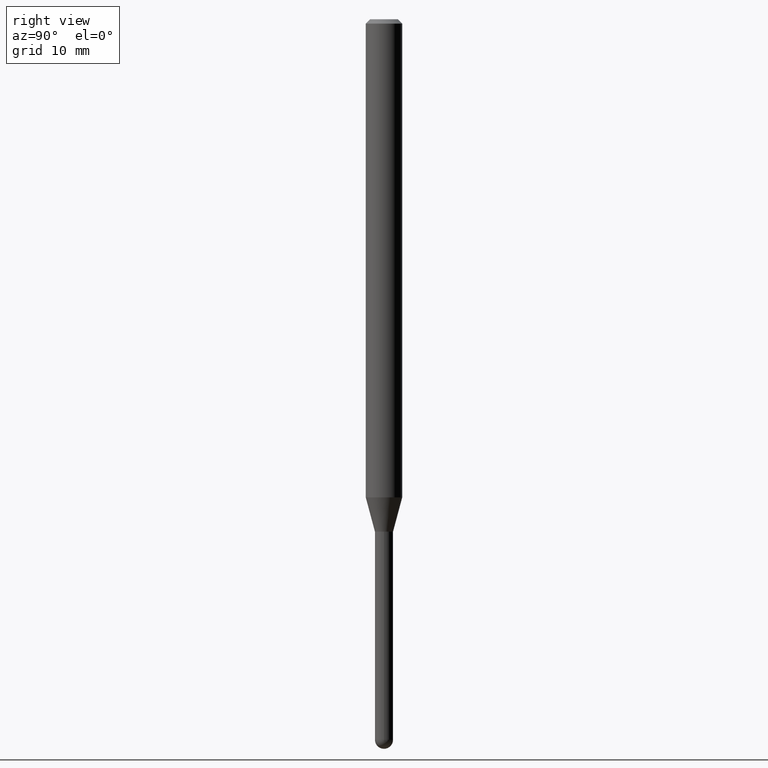
[diagram: clean part render]
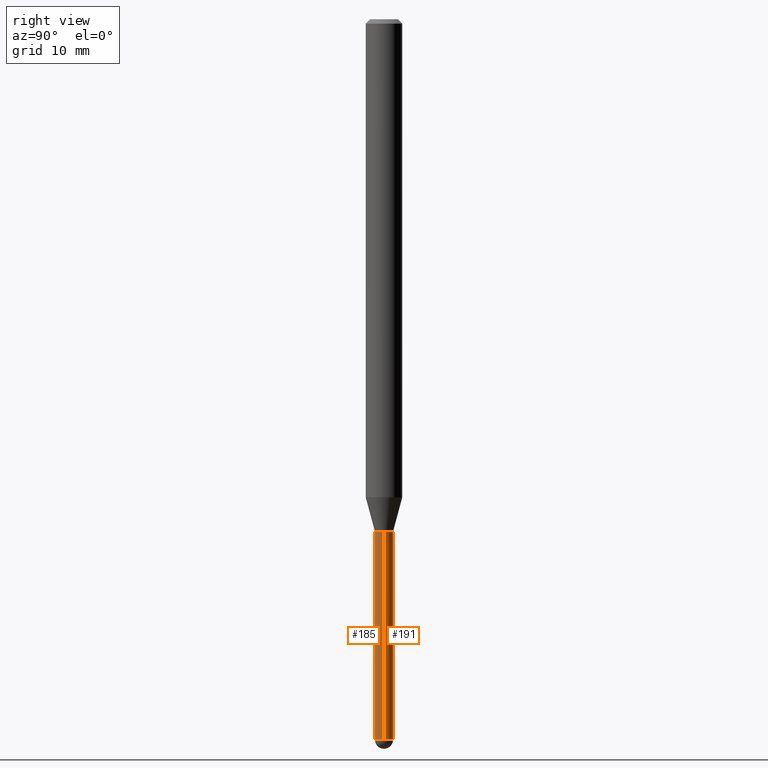
[diagram: same view with one multi-face feature highlighted, each face labeled with its STEP entity id]
A machine part, right view. The highlighted faces form ONE feature: a constant-radius fillet chain: 2 tangent blend faces with common blend radius 0.7874 mm. The faces share edges in the B-rep.
Their STEP definitions:
[1] entity #191 (Cylinder):
#7 = FACE_OUTER_BOUND ( 'NONE', #284, .T. ) ;
#27 = CIRCLE ( 'NONE', #311, 0.03099999999999999978 ) ;
#43 = DIRECTION ( 'NONE',  ( -2.445468806185136597E-29, 3.491481338843145583E-15, 1.000000000000000000 ) ) ;
#68 = LINE ( 'NONE', #224, #162 ) ;
#79 = DIRECTION ( 'NONE',  ( -2.445468806185136597E-29, 3.491481338843145583E-15, 1.000000000000000000 ) ) ;
#88 = CARTESIAN_POINT ( 'NONE',  ( 0.000000000000000000, 0.000000000000000000, 0.000000000000000000 ) ) ;
#90 = DIRECTION ( 'NONE',  ( 1.000000000000000000, -6.982962677686270655E-15, 0.000000000000000000 ) ) ;
#91 = EDGE_CURVE ( 'NONE', #496, #244, #68, .T. ) ;
#120 = CARTESIAN_POINT ( 'NONE',  ( 0.03099999999999999978, -6.347513074016838623E-15, -1.756000000000000005 ) ) ;
#128 = CARTESIAN_POINT ( 'NONE',  ( -0.03099999999999999978, -7.155486080220514781E-15, -1.756000000000000005 ) ) ;
#134 = EDGE_CURVE ( 'NONE', #320, #454, #202, .T. ) ;
#162 = VECTOR ( 'NONE', #473, 39.37007874015748143 ) ;
#163 = DIRECTION ( 'NONE',  ( 1.000000000000000000, -6.982962677686266711E-15, 4.876176775795935232E-29 ) ) ;
#168 = DIRECTION ( 'NONE',  ( -2.445468806185136877E-29, 3.491481338843145188E-15, 1.000000000000000000 ) ) ;
#187 = ORIENTED_EDGE ( 'NONE', *, *, #91, .F. ) ;
#191 = ADVANCED_FACE ( 'NONE', ( #7 ), #208, .T. ) ;
#202 = CIRCLE ( 'NONE', #358, 0.03099999999999999978 ) ;
#207 = EDGE_CURVE ( 'NONE', #454, #241, #355, .T. ) ;
#208 = CYLINDRICAL_SURFACE ( 'NONE', #286, 0.03099999999999999978 ) ;
#218 = CARTESIAN_POINT ( 'NONE',  ( 2.164718430083341860E-16, 0.03099999999999131575, -2.469000000000000306 ) ) ;
#224 = CARTESIAN_POINT ( 'NONE',  ( 0.03099999999999999978, -2.164718430082742572E-16, 1.511614800496739984E-30 ) ) ;
#232 = EDGE_CURVE ( 'NONE', #496, #320, #416, .T. ) ;
#233 = DIRECTION ( 'NONE',  ( -2.445468806185136597E-29, 3.491481338843145583E-15, 1.000000000000000000 ) ) ;
#235 = CARTESIAN_POINT ( 'NONE',  ( 4.294243223661099859E-29, -6.131041231008564292E-15, -1.756000000000000005 ) ) ;
#241 = VERTEX_POINT ( 'NONE', #128 ) ;
#244 = VERTEX_POINT ( 'NONE', #120 ) ;
#271 = DIRECTION ( 'NONE',  ( 1.000000000000000000, -6.982962677686270655E-15, 0.000000000000000000 ) ) ;
#278 = CARTESIAN_POINT ( 'NONE',  ( 0.03099999999999999978, -7.592226171314421154E-15, -2.469000000000000306 ) ) ;
#284 = EDGE_LOOP ( 'NONE', ( #426, #288, #356, #187, #479 ) ) ;
#286 = AXIS2_PLACEMENT_3D ( 'NONE', #88, #43, #163 ) ;
#288 = ORIENTED_EDGE ( 'NONE', *, *, #207, .T. ) ;
#311 = AXIS2_PLACEMENT_3D ( 'NONE', #235, #442, #90 ) ;
#319 = CARTESIAN_POINT ( 'NONE',  ( -0.03099999999999999978, 2.202682480856310560E-16, -1.524869877979020612E-30 ) ) ;
#320 = VERTEX_POINT ( 'NONE', #218 ) ;
#325 = CARTESIAN_POINT ( 'NONE',  ( -0.03099999999999999978, -7.155486080220514781E-15, -2.469000000000000306 ) ) ;
#328 = AXIS2_PLACEMENT_3D ( 'NONE', #440, #79, #271 ) ;
#348 = VECTOR ( 'NONE', #168, 39.37007874015748143 ) ;
#355 = LINE ( 'NONE', #319, #348 ) ;
#356 = ORIENTED_EDGE ( 'NONE', *, *, #460, .F. ) ;
#358 = AXIS2_PLACEMENT_3D ( 'NONE', #486, #233, #449 ) ;
#416 = CIRCLE ( 'NONE', #328, 0.03099999999999999978 ) ;
#426 = ORIENTED_EDGE ( 'NONE', *, *, #134, .T. ) ;
#440 = CARTESIAN_POINT ( 'NONE',  ( 6.037862482471103495E-29, -8.620467425603728566E-15, -2.469000000000000306 ) ) ;
#442 = DIRECTION ( 'NONE',  ( -2.445468806185136597E-29, 3.491481338843145583E-15, 1.000000000000000000 ) ) ;
#449 = DIRECTION ( 'NONE',  ( 1.000000000000000000, -6.982962677686270655E-15, 0.000000000000000000 ) ) ;
#454 = VERTEX_POINT ( 'NONE', #325 ) ;
#460 = EDGE_CURVE ( 'NONE', #244, #241, #27, .T. ) ;
#473 = DIRECTION ( 'NONE',  ( -2.445468806185136877E-29, 3.491481338843145188E-15, 1.000000000000000000 ) ) ;
#479 = ORIENTED_EDGE ( 'NONE', *, *, #232, .T. ) ;
#486 = CARTESIAN_POINT ( 'NONE',  ( 6.037862482471103495E-29, -8.620467425603728566E-15, -2.469000000000000306 ) ) ;
#496 = VERTEX_POINT ( 'NONE', #278 ) ;
[2] entity #185 (Cylinder):
#10 = CARTESIAN_POINT ( 'NONE',  ( 0.000000000000000000, 0.000000000000000000, 0.000000000000000000 ) ) ;
#36 = DIRECTION ( 'NONE',  ( -2.445468806185136597E-29, 3.491481338843145583E-15, 1.000000000000000000 ) ) ;
#45 = DIRECTION ( 'NONE',  ( 1.000000000000000000, -6.982962677686266711E-15, 4.876176775795935232E-29 ) ) ;
#61 = EDGE_CURVE ( 'NONE', #483, #496, #254, .T. ) ;
#68 = LINE ( 'NONE', #224, #162 ) ;
#73 = AXIS2_PLACEMENT_3D ( 'NONE', #196, #36, #326 ) ;
#82 = DIRECTION ( 'NONE',  ( -2.445468806185136597E-29, 3.491481338843145583E-15, 1.000000000000000000 ) ) ;
#86 = ORIENTED_EDGE ( 'NONE', *, *, #207, .F. ) ;
#91 = EDGE_CURVE ( 'NONE', #496, #244, #68, .T. ) ;
#120 = CARTESIAN_POINT ( 'NONE',  ( 0.03099999999999999978, -6.347513074016838623E-15, -1.756000000000000005 ) ) ;
#128 = CARTESIAN_POINT ( 'NONE',  ( -0.03099999999999999978, -7.155486080220514781E-15, -1.756000000000000005 ) ) ;
#133 = ORIENTED_EDGE ( 'NONE', *, *, #61, .T. ) ;
#162 = VECTOR ( 'NONE', #473, 39.37007874015748143 ) ;
#167 = CARTESIAN_POINT ( 'NONE',  ( -2.202682480855702151E-16, -0.03100000000000856237, -2.469000000000000306 ) ) ;
#168 = DIRECTION ( 'NONE',  ( -2.445468806185136877E-29, 3.491481338843145188E-15, 1.000000000000000000 ) ) ;
#185 = ADVANCED_FACE ( 'NONE', ( #204 ), #360, .T. ) ;
#196 = CARTESIAN_POINT ( 'NONE',  ( 4.294243223661099859E-29, -6.131041231008564292E-15, -1.756000000000000005 ) ) ;
#197 = DIRECTION ( 'NONE',  ( -2.445468806185136597E-29, 3.491481338843145583E-15, 1.000000000000000000 ) ) ;
#203 = CIRCLE ( 'NONE', #498, 0.03099999999999999978 ) ;
#204 = FACE_OUTER_BOUND ( 'NONE', #316, .T. ) ;
#207 = EDGE_CURVE ( 'NONE', #454, #241, #355, .T. ) ;
#224 = CARTESIAN_POINT ( 'NONE',  ( 0.03099999999999999978, -2.164718430082742572E-16, 1.511614800496739984E-30 ) ) ;
#241 = VERTEX_POINT ( 'NONE', #128 ) ;
#244 = VERTEX_POINT ( 'NONE', #120 ) ;
#245 = EDGE_CURVE ( 'NONE', #241, #244, #299, .T. ) ;
#254 = CIRCLE ( 'NONE', #305, 0.03099999999999999978 ) ;
#263 = CARTESIAN_POINT ( 'NONE',  ( 6.037862482471103495E-29, -8.620467425603728566E-15, -2.469000000000000306 ) ) ;
#266 = DIRECTION ( 'NONE',  ( -2.445468806185136597E-29, 3.491481338843145583E-15, 1.000000000000000000 ) ) ;
#278 = CARTESIAN_POINT ( 'NONE',  ( 0.03099999999999999978, -7.592226171314421154E-15, -2.469000000000000306 ) ) ;
#299 = CIRCLE ( 'NONE', #73, 0.03099999999999999978 ) ;
#305 = AXIS2_PLACEMENT_3D ( 'NONE', #263, #266, #309 ) ;
#309 = DIRECTION ( 'NONE',  ( 1.000000000000000000, -6.982962677686270655E-15, 0.000000000000000000 ) ) ;
#316 = EDGE_LOOP ( 'NONE', ( #86, #421, #133, #502, #485 ) ) ;
#319 = CARTESIAN_POINT ( 'NONE',  ( -0.03099999999999999978, 2.202682480856310560E-16, -1.524869877979020612E-30 ) ) ;
#325 = CARTESIAN_POINT ( 'NONE',  ( -0.03099999999999999978, -7.155486080220514781E-15, -2.469000000000000306 ) ) ;
#326 = DIRECTION ( 'NONE',  ( 1.000000000000000000, -6.982962677686270655E-15, 0.000000000000000000 ) ) ;
#348 = VECTOR ( 'NONE', #168, 39.37007874015748143 ) ;
#355 = LINE ( 'NONE', #319, #348 ) ;
#360 = CYLINDRICAL_SURFACE ( 'NONE', #435, 0.03099999999999999978 ) ;
#409 = DIRECTION ( 'NONE',  ( 1.000000000000000000, -6.982962677686270655E-15, 0.000000000000000000 ) ) ;
#421 = ORIENTED_EDGE ( 'NONE', *, *, #445, .T. ) ;
#435 = AXIS2_PLACEMENT_3D ( 'NONE', #10, #197, #45 ) ;
#439 = CARTESIAN_POINT ( 'NONE',  ( 6.037862482471103495E-29, -8.620467425603728566E-15, -2.469000000000000306 ) ) ;
#445 = EDGE_CURVE ( 'NONE', #454, #483, #203, .T. ) ;
#454 = VERTEX_POINT ( 'NONE', #325 ) ;
#473 = DIRECTION ( 'NONE',  ( -2.445468806185136877E-29, 3.491481338843145188E-15, 1.000000000000000000 ) ) ;
#483 = VERTEX_POINT ( 'NONE', #167 ) ;
#485 = ORIENTED_EDGE ( 'NONE', *, *, #245, .F. ) ;
#496 = VERTEX_POINT ( 'NONE', #278 ) ;
#498 = AXIS2_PLACEMENT_3D ( 'NONE', #439, #82, #409 ) ;
#502 = ORIENTED_EDGE ( 'NONE', *, *, #91, .T. ) ;